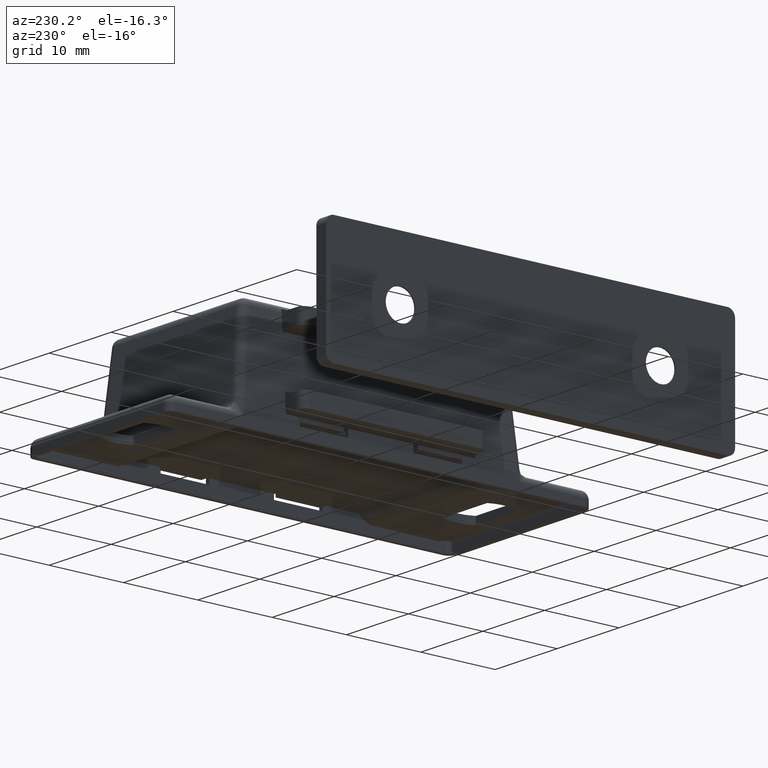
[diagram: clean part render]
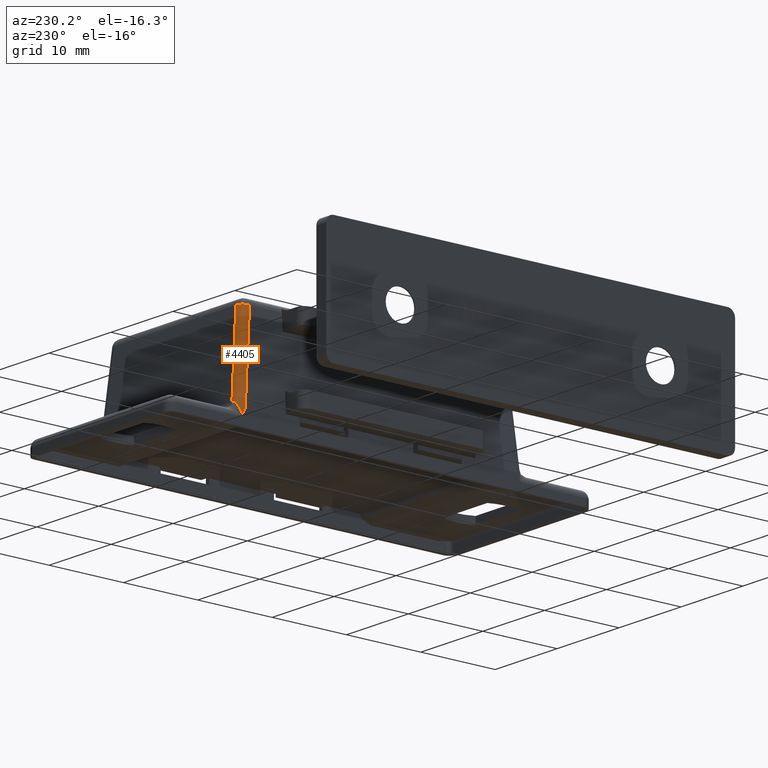
[diagram: same view with one face highlighted and labeled with its STEP entity id]
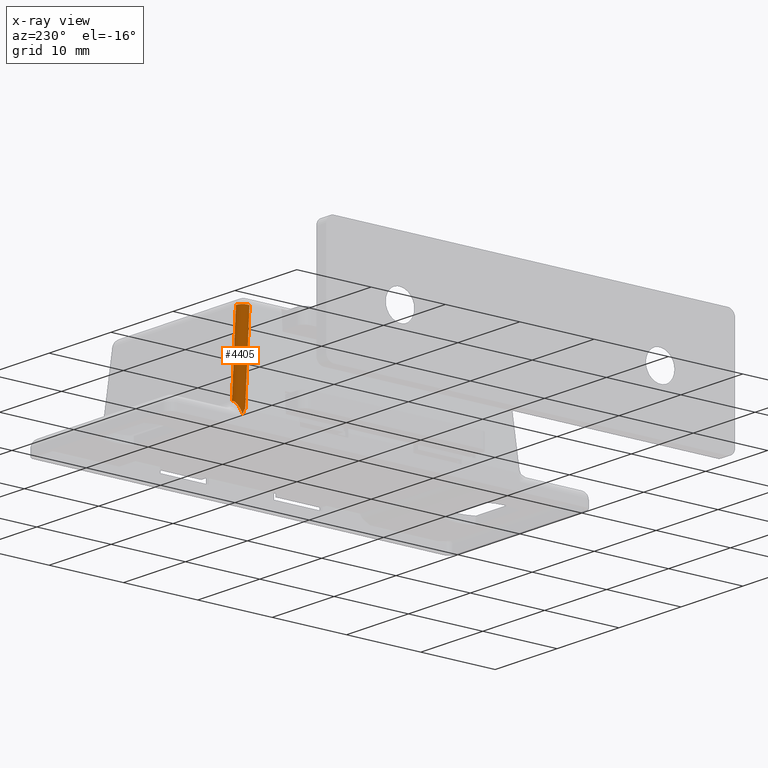
[diagram: x-ray of the same camera — body ghosted, the highlighted face saturated]
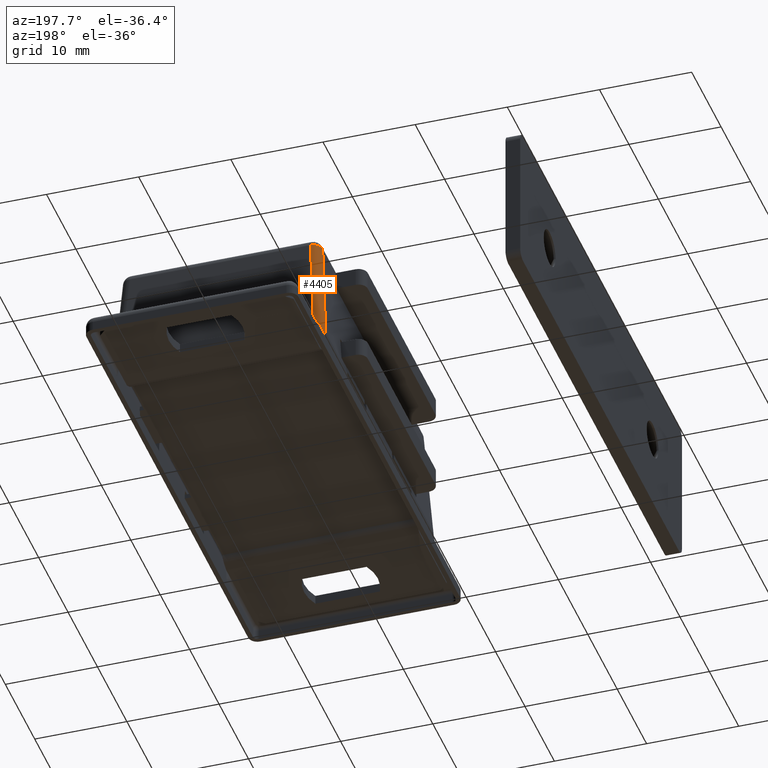
[diagram: same view with one face highlighted and labeled with its STEP entity id]
A machine part, auxiliary view. The second image highlights one B-rep face of the part: STEP entity #4405.
The next image is the same camera in x-ray: the body ghosted, the highlighted face saturated — about 0% of this face is hidden behind the body in this view.
A second angle (auxiliary view) of the same face is appended — the face is thin or edge-on in the first view.
In plain terms, the highlighted cylindrical surface (edge-blend (fillet) strip) has radius 1 mm, axis along (0.0596, -0.0993, 0.9933).
Its self-contained STEP definition (entity closure, byte-faithful):
#155=CIRCLE('',#4729,0.999999999999995);
#269=CYLINDRICAL_SURFACE('',#4743,1.);
#322=B_SPLINE_CURVE_WITH_KNOTS('',3,(#7208,#7209,#7210,#7211,#7212,#7213,
#7214,#7215),.UNSPECIFIED.,.F.,.F.,(4,1,1,1,1,4),(-0.309933896709336,-0.303133406819659,
-0.253441587195953,-0.15405794794854,-0.0795202185129808,-0.00498248907742144),
 .UNSPECIFIED.);
#335=ELLIPSE('',#4618,16.7796172648709,1.);
#346=ELLIPSE('',#4653,1.02683981223947,1.);
#464=FACE_OUTER_BOUND('',#717,.T.);
#717=EDGE_LOOP('',(#3444,#3445,#3446,#3447,#3448,#3449));
#970=LINE('',#6510,#1430);
#1064=LINE('',#7644,#1524);
#1430=VECTOR('',#5151,11.6382340956928);
#1524=VECTOR('',#5537,10.7715149954611);
#1879=VERTEX_POINT('',#6497);
#1883=VERTEX_POINT('',#6509);
#1918=VERTEX_POINT('',#6632);
#1946=VERTEX_POINT('',#7196);
#1949=VERTEX_POINT('',#7218);
#1980=VERTEX_POINT('',#7618);
#2325=EDGE_CURVE('',#1883,#1879,#970,.T.);
#2378=EDGE_CURVE('',#1918,#1883,#335,.T.);
#2429=EDGE_CURVE('',#1918,#1946,#322,.T.);
#2435=EDGE_CURVE('',#1946,#1949,#346,.T.);
#2504=EDGE_CURVE('',#1879,#1980,#155,.F.);
#2518=EDGE_CURVE('',#1980,#1949,#1064,.T.);
#3444=ORIENTED_EDGE('',*,*,#2429,.F.);
#3445=ORIENTED_EDGE('',*,*,#2378,.T.);
#3446=ORIENTED_EDGE('',*,*,#2325,.T.);
#3447=ORIENTED_EDGE('',*,*,#2504,.T.);
#3448=ORIENTED_EDGE('',*,*,#2518,.T.);
#3449=ORIENTED_EDGE('',*,*,#2435,.F.);
#4405=ADVANCED_FACE('',(#464),#269,.T.);
#4618=AXIS2_PLACEMENT_3D('',#6633,#5237,#5238);
#4653=AXIS2_PLACEMENT_3D('',#7246,#5326,#5327);
#4729=AXIS2_PLACEMENT_3D('',#7619,#5500,#5501);
#4743=AXIS2_PLACEMENT_3D('',#7643,#5535,#5536);
#5151=DIRECTION('',(0.059596114989676,-0.0993268583161262,0.993268583161264));
#5237=DIRECTION('center_axis',(1.,2.72686356925477E-16,0.));
#5238=DIRECTION('ref_axis',(2.92932149528506E-17,-0.0995037190209987,0.995037190209989));
#5326=DIRECTION('center_axis',(0.0580383758784155,-0.0967306264640247,-0.993616995038467));
#5327=DIRECTION('ref_axis',(-0.511211726467946,0.852019544113241,-0.112806325933996));
#5500=DIRECTION('center_axis',(0.0595961149896726,-0.0993268583161223,0.993268583161265));
#5501=DIRECTION('ref_axis',(-0.998204845465779,0.,0.0598922907279434));
#5535=DIRECTION('center_axis',(0.059596114989676,-0.0993268583161263,0.993268583161264));
#5536=DIRECTION('ref_axis',(-0.703743548378227,0.701510322442816,0.112375645146975));
#5537=DIRECTION('',(-0.059596114989676,0.0993268583161263,-0.993268583161264));
#6497=CARTESIAN_POINT('',(-10.8064064625563,17.0950124378879,13.5598922907279));
#6509=CARTESIAN_POINT('',(-11.5,18.2510016669607,2.));
#6510=CARTESIAN_POINT('',(-11.4650690509059,18.1927834184706,2.58218248490141));
#6632=CARTESIAN_POINT('',(-11.5,18.5996757857533,1.32972896478167));
#6633=CARTESIAN_POINT('Origin',(-11.5,19.9146764094037,-14.6966397151575));
#7196=CARTESIAN_POINT('',(-10.4751577293142,19.159783606196,2.89905132051769));
#7208=CARTESIAN_POINT('Ctrl Pts',(-11.4999385216659,18.6001689327787,1.329636762875));
#7209=CARTESIAN_POINT('Ctrl Pts',(-11.4971632681585,18.603580715073,1.34973671773862));
#7210=CARTESIAN_POINT('Ctrl Pts',(-11.4730889771992,18.6348797304463,1.51394588148896));
#7211=CARTESIAN_POINT('Ctrl Pts',(-11.3862906810486,18.7612738002801,1.90660434077756));
#7212=CARTESIAN_POINT('Ctrl Pts',(-11.1842778920386,18.9514224573769,2.39027164239116));
#7213=CARTESIAN_POINT('Ctrl Pts',(-10.848822212332,19.1135987188299,2.78662968885635));
#7214=CARTESIAN_POINT('Ctrl Pts',(-10.5998010593973,19.1573855860948,2.89200420428437));
#7215=CARTESIAN_POINT('Ctrl Pts',(-10.4751577293142,19.159783606196,2.89905132051769));
#7218=CARTESIAN_POINT('',(-10.4501420633731,19.1599503719021,2.900496280979));
#7246=CARTESIAN_POINT('Origin',(-10.4382016170906,18.1450124378879,3.));
#7618=CARTESIAN_POINT('',(-9.80820161709055,18.0900496280979,13.599503719021));
#7619=CARTESIAN_POINT('Origin',(-9.80820161709055,17.0950124378879,13.5));
#7643=CARTESIAN_POINT('Origin',(-10.4668642054401,18.1927834184706,2.52229019417347));
#7644=CARTESIAN_POINT('',(-10.4668642054401,19.1878206086806,2.62179391319447));